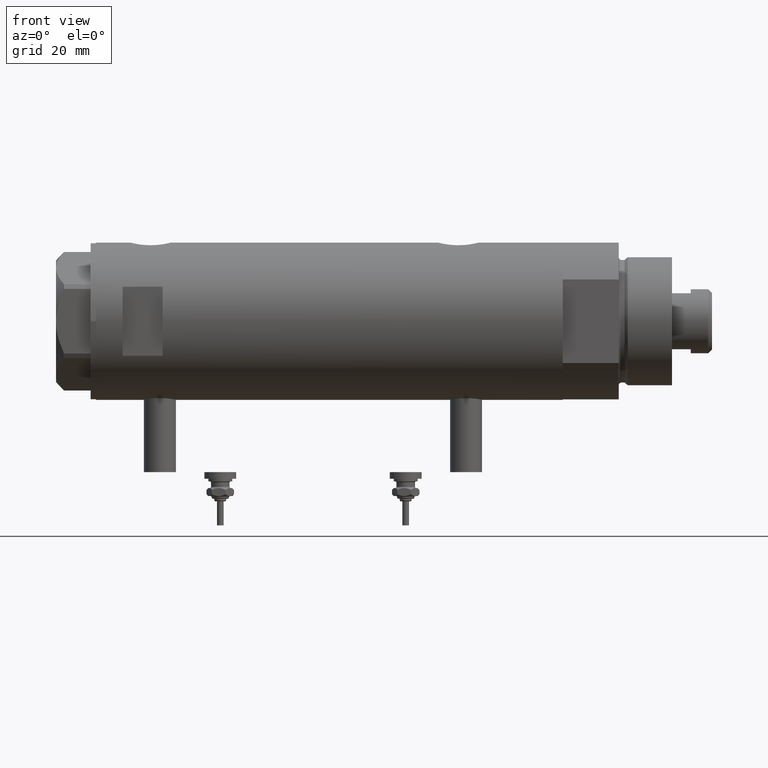
[diagram: clean part render]
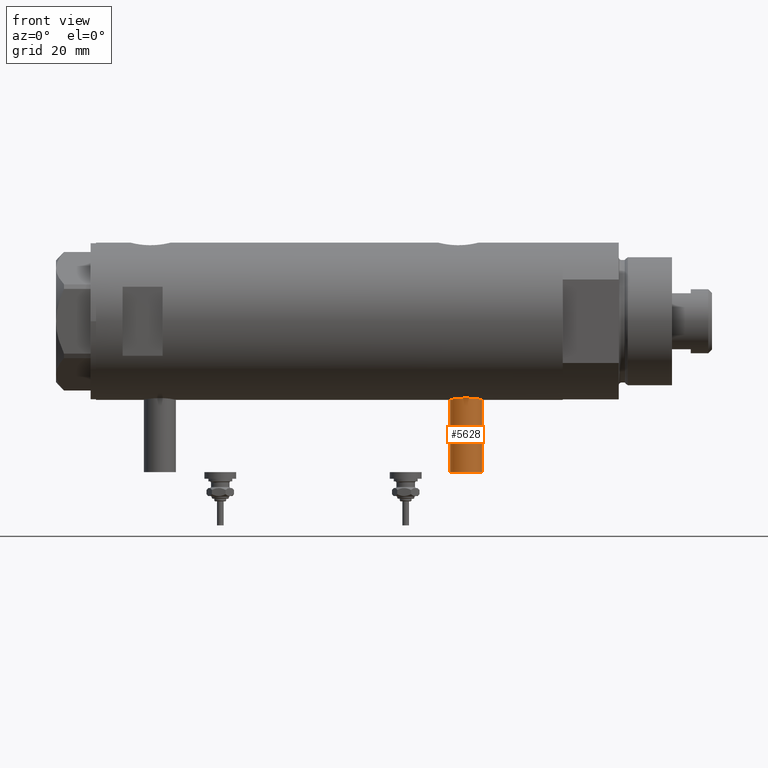
[diagram: same view with one face highlighted and labeled with its STEP entity id]
A machine part, front view. The second image highlights one B-rep face of the part: STEP entity #5628.
In plain terms, the highlighted cylindrical surface (edge-blend (fillet) strip) has radius 6 mm, axis along (0, 0, 1).
Its self-contained STEP definition (entity closure, byte-faithful):
#370 = ORIENTED_EDGE ( 'NONE', *, *, #3004, .T. ) ;
#452 = CARTESIAN_POINT ( 'NONE',  ( -56.60000000000000142, 0.000000000000000000, -57.30000000000000426 ) ) ;
#558 = CARTESIAN_POINT ( 'NONE',  ( -28.30000000000000071, 0.000000000000000000, -57.30000000000000426 ) ) ;
#701 = ORIENTED_EDGE ( 'NONE', *, *, #3995, .F. ) ;
#933 = VERTEX_POINT ( 'NONE', #2298 ) ;
#941 = CARTESIAN_POINT ( 'NONE',  ( -56.60000000000000142, 7.347880794884119736E-16, -45.29999999999999005 ) ) ;
#985 = CARTESIAN_POINT ( 'NONE',  ( -56.60000000000000142, 0.000000000000000000, -51.29999999999999716 ) ) ;
#999 = VECTOR ( 'NONE', #4113, 1000.000000000000000 ) ;
#1022 = FACE_OUTER_BOUND ( 'NONE', #2973, .T. ) ;
#1454 = CYLINDRICAL_SURFACE ( 'NONE', #2839, 6.000000000000005329 ) ;
#2080 = EDGE_CURVE ( 'NONE', #3842, #933, #2610, .T. ) ;
#2129 = DIRECTION ( 'NONE',  ( -1.000000000000000000, 0.000000000000000000, 0.000000000000000000 ) ) ;
#2165 = AXIS2_PLACEMENT_3D ( 'NONE', #5505, #4586, #4134 ) ;
#2298 = CARTESIAN_POINT ( 'NONE',  ( -28.30000000000000071, 7.347880794884119736E-16, -45.29999999999999005 ) ) ;
#2299 = DIRECTION ( 'NONE',  ( 0.000000000000000000, 0.000000000000000000, -1.000000000000000000 ) ) ;
#2609 = ORIENTED_EDGE ( 'NONE', *, *, #5457, .F. ) ;
#2610 = CIRCLE ( 'NONE', #5289, 6.000000000000005329 ) ;
#2839 = AXIS2_PLACEMENT_3D ( 'NONE', #985, #3197, #2299 ) ;
#2973 = EDGE_LOOP ( 'NONE', ( #701, #2609, #370, #5767 ) ) ;
#3004 = EDGE_CURVE ( 'NONE', #4689, #3842, #4568, .T. ) ;
#3043 = LINE ( 'NONE', #3481, #5886 ) ;
#3078 = CARTESIAN_POINT ( 'NONE',  ( -28.30000000000000071, 0.000000000000000000, -51.29999999999999716 ) ) ;
#3197 = DIRECTION ( 'NONE',  ( 1.000000000000000000, -0.000000000000000000, -0.000000000000000000 ) ) ;
#3481 = CARTESIAN_POINT ( 'NONE',  ( -56.60000000000000142, 7.347880794884122694E-16, -45.29999999999999005 ) ) ;
#3842 = VERTEX_POINT ( 'NONE', #558 ) ;
#3880 = DIRECTION ( 'NONE',  ( 0.000000000000000000, 0.000000000000000000, 1.000000000000000000 ) ) ;
#3995 = EDGE_CURVE ( 'NONE', #5355, #933, #3043, .T. ) ;
#4113 = DIRECTION ( 'NONE',  ( 1.000000000000000000, -0.000000000000000000, -0.000000000000000000 ) ) ;
#4121 = CARTESIAN_POINT ( 'NONE',  ( -56.60000000000000142, 0.000000000000000000, -57.30000000000000426 ) ) ;
#4134 = DIRECTION ( 'NONE',  ( 0.000000000000000000, 0.000000000000000000, 1.000000000000000000 ) ) ;
#4568 = LINE ( 'NONE', #452, #999 ) ;
#4586 = DIRECTION ( 'NONE',  ( -1.000000000000000000, 0.000000000000000000, 0.000000000000000000 ) ) ;
#4689 = VERTEX_POINT ( 'NONE', #4121 ) ;
#4737 = CIRCLE ( 'NONE', #2165, 6.000000000000005329 ) ;
#4854 = DIRECTION ( 'NONE',  ( 1.000000000000000000, -0.000000000000000000, -0.000000000000000000 ) ) ;
#5289 = AXIS2_PLACEMENT_3D ( 'NONE', #3078, #2129, #3880 ) ;
#5355 = VERTEX_POINT ( 'NONE', #941 ) ;
#5457 = EDGE_CURVE ( 'NONE', #4689, #5355, #4737, .T. ) ;
#5505 = CARTESIAN_POINT ( 'NONE',  ( -56.60000000000000142, 0.000000000000000000, -51.29999999999999716 ) ) ;
#5628 = ADVANCED_FACE ( 'NONE', ( #1022 ), #1454, .T. ) ;
#5767 = ORIENTED_EDGE ( 'NONE', *, *, #2080, .T. ) ;
#5886 = VECTOR ( 'NONE', #4854, 1000.000000000000000 ) ;